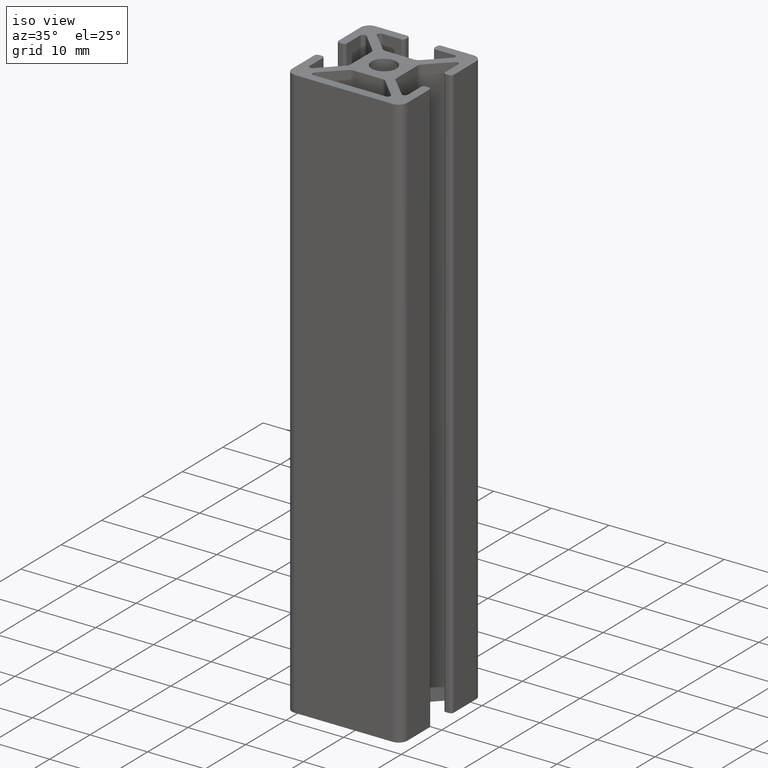
[diagram: clean part render]
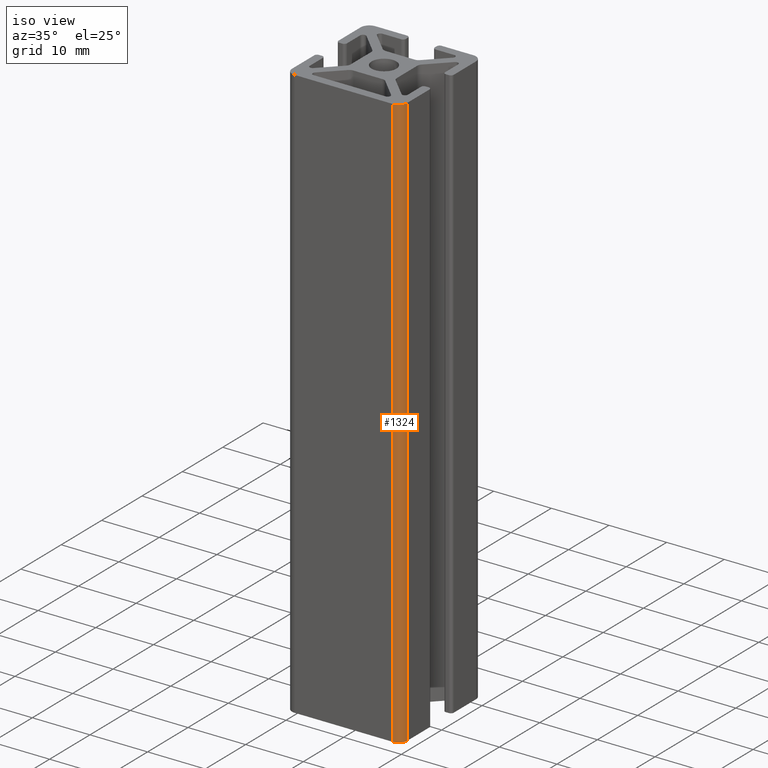
[diagram: same view with one face highlighted and labeled with its STEP entity id]
A machine part, iso view. The second image highlights one B-rep face of the part: STEP entity #1324.
In plain terms, the highlighted cylindrical surface (edge-blend (fillet) strip) has radius 1.5 mm, axis along (0, 0, 1).
Its self-contained STEP definition (entity closure, byte-faithful):
#174=LINE('',#2242,#302);
#175=LINE('',#2246,#303);
#302=VECTOR('',#1847,100.);
#303=VECTOR('',#1852,100.);
#374=FACE_OUTER_BOUND('',#444,.T.);
#444=EDGE_LOOP('',(#1154,#1155,#1156,#1157));
#509=CIRCLE('',#1447,1.5);
#514=CIRCLE('',#1459,1.5);
#636=VERTEX_POINT('',#2214);
#637=VERTEX_POINT('',#2216);
#643=VERTEX_POINT('',#2240);
#644=VERTEX_POINT('',#2244);
#822=EDGE_CURVE('',#636,#637,#509,.T.);
#835=EDGE_CURVE('',#636,#643,#174,.T.);
#836=EDGE_CURVE('',#643,#644,#514,.T.);
#837=EDGE_CURVE('',#637,#644,#175,.T.);
#1154=ORIENTED_EDGE('',*,*,#836,.T.);
#1155=ORIENTED_EDGE('',*,*,#837,.F.);
#1156=ORIENTED_EDGE('',*,*,#822,.F.);
#1157=ORIENTED_EDGE('',*,*,#835,.T.);
#1259=CYLINDRICAL_SURFACE('',#1458,1.5);
#1324=ADVANCED_FACE('',(#374),#1259,.T.);
#1447=AXIS2_PLACEMENT_3D('',#2217,#1817,#1818);
#1458=AXIS2_PLACEMENT_3D('',#2243,#1848,#1849);
#1459=AXIS2_PLACEMENT_3D('',#2245,#1850,#1851);
#1817=DIRECTION('center_axis',(0.,0.,-1.));
#1818=DIRECTION('ref_axis',(7.40148683083438E-16,1.,0.));
#1847=DIRECTION('',(0.,0.,1.));
#1848=DIRECTION('center_axis',(0.,0.,1.));
#1849=DIRECTION('ref_axis',(7.40148683083438E-16,1.,0.));
#1850=DIRECTION('center_axis',(0.,0.,-1.));
#1851=DIRECTION('ref_axis',(7.40148683083438E-16,1.,0.));
#1852=DIRECTION('',(0.,0.,1.));
#2214=CARTESIAN_POINT('',(10.,-8.5,0.));
#2216=CARTESIAN_POINT('',(8.5,-10.,0.));
#2217=CARTESIAN_POINT('Origin',(8.5,-8.5,0.));
#2240=CARTESIAN_POINT('',(10.,-8.5,100.));
#2242=CARTESIAN_POINT('',(10.,-8.5,0.));
#2243=CARTESIAN_POINT('Origin',(8.5,-8.5,0.));
#2244=CARTESIAN_POINT('',(8.5,-10.,100.));
#2245=CARTESIAN_POINT('Origin',(8.5,-8.5,100.));
#2246=CARTESIAN_POINT('',(8.5,-10.,0.));